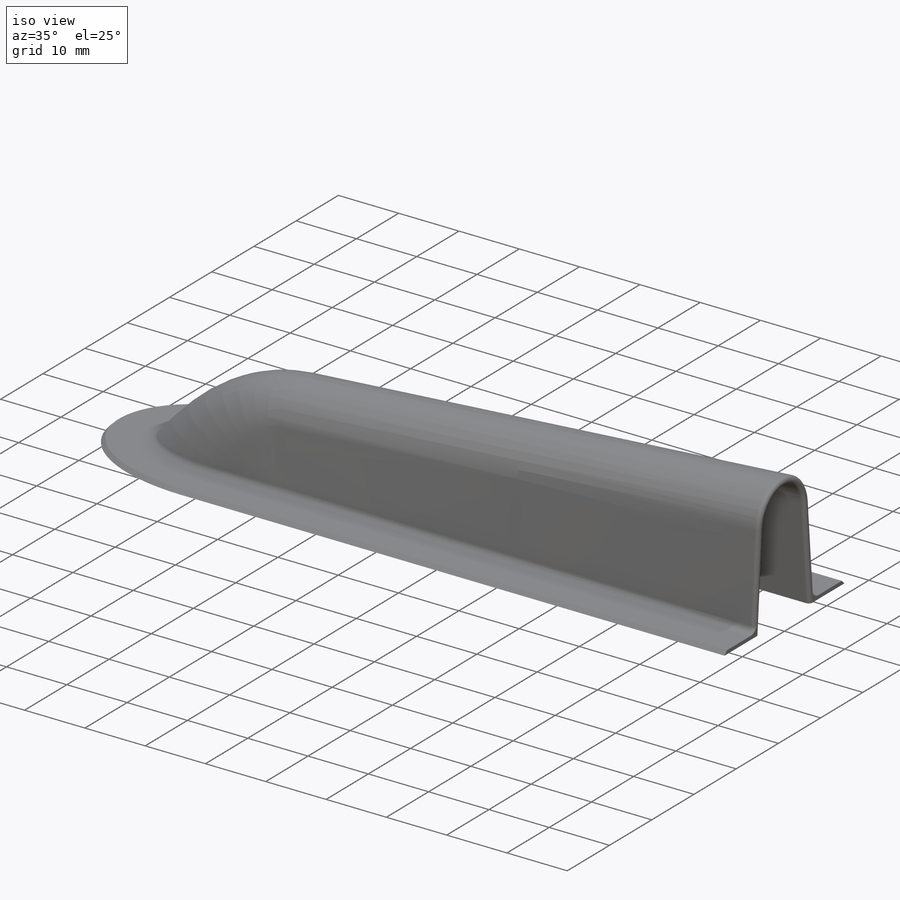
[diagram: iso view]
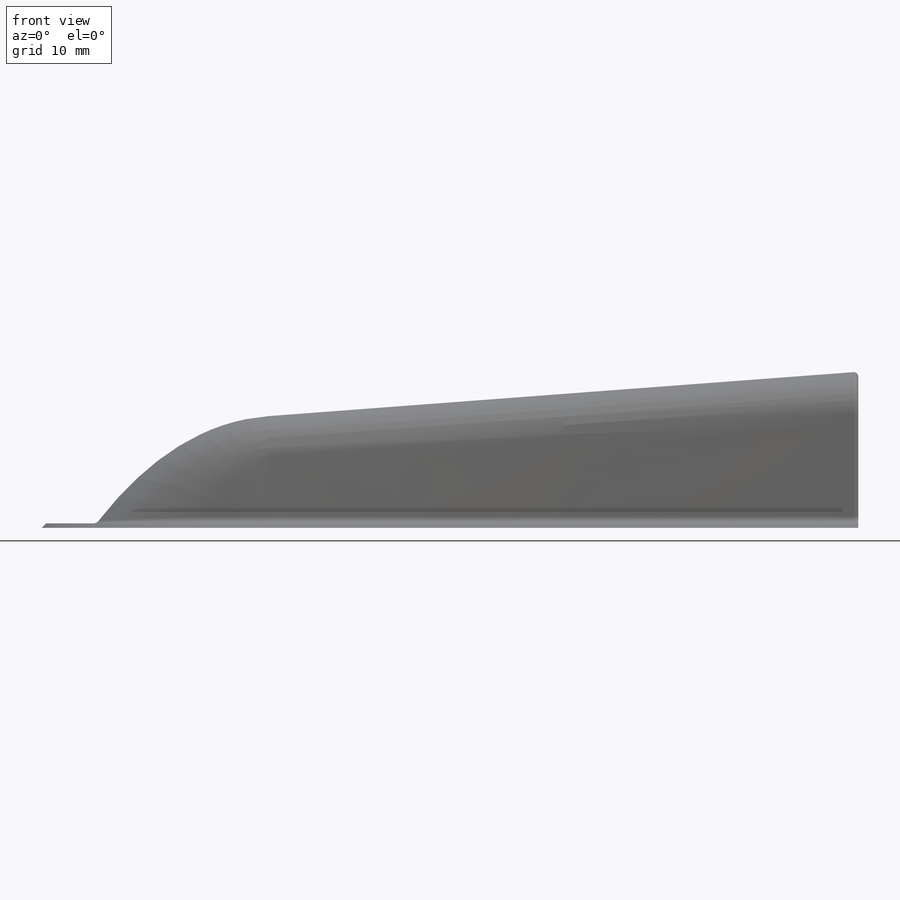
[diagram: front view]
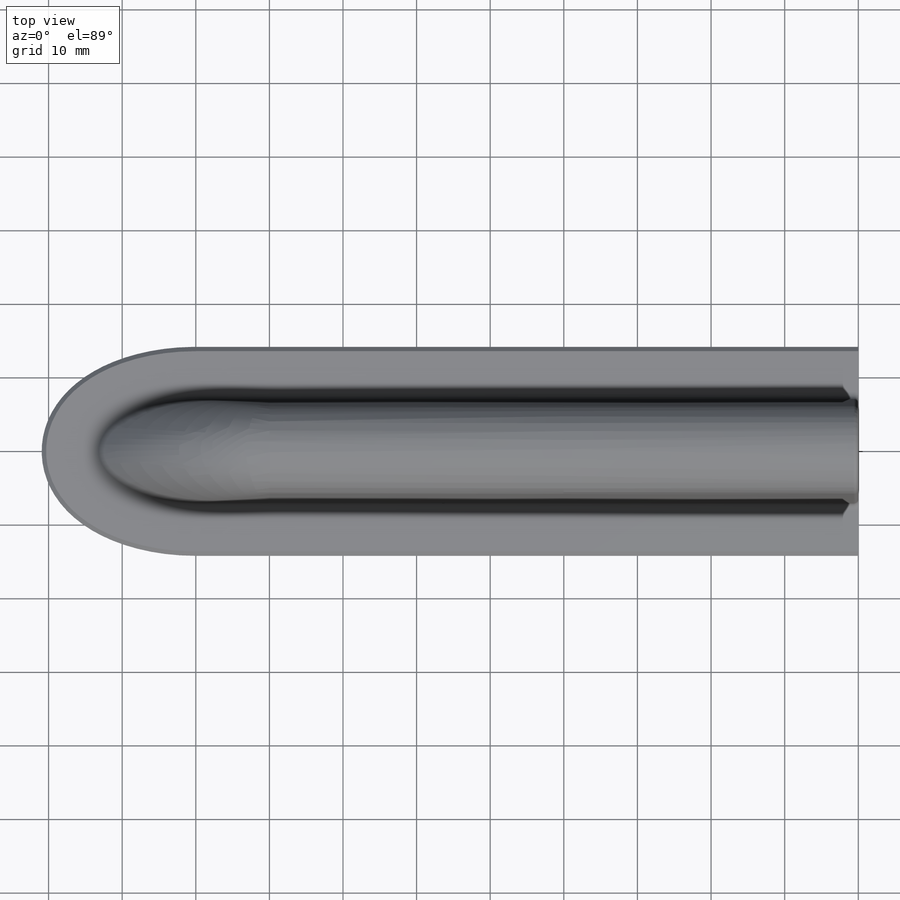
[diagram: top view]
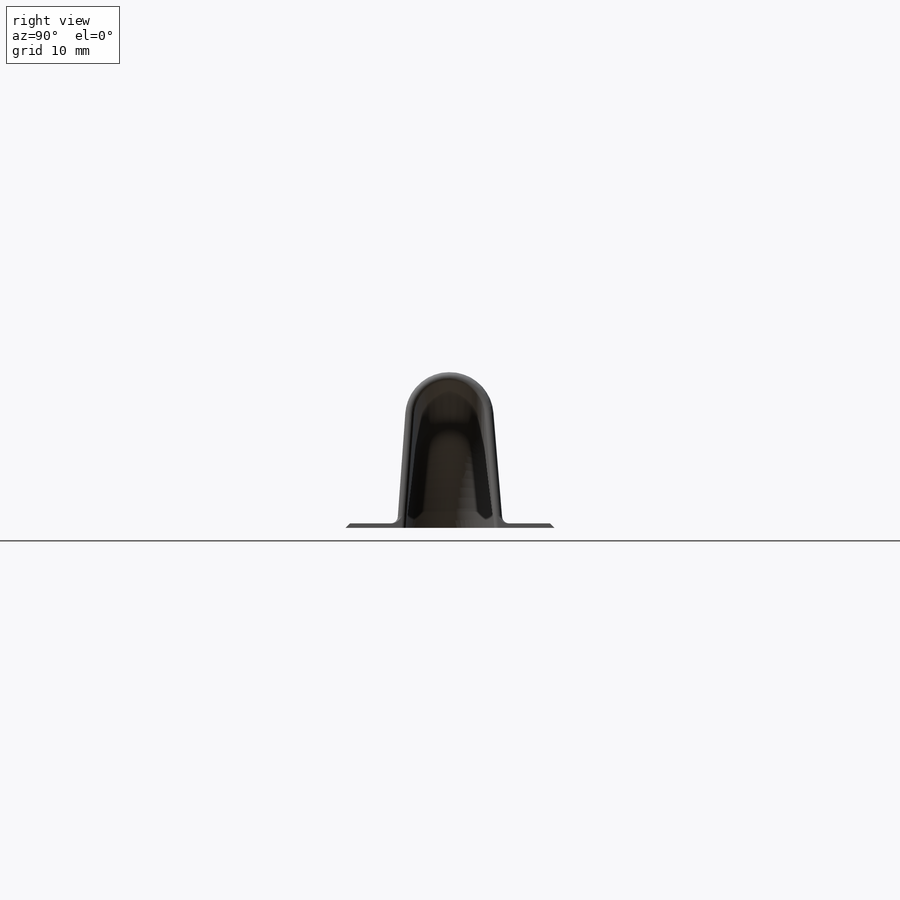
[diagram: right view]
SOLIDWORKS PART (.sldprt)
format: sldprt  version: not decoded by parser v0  size: 465,408 bytes
history: native  units: mm
features: sketch x6, fillet x3, material x1, plane x1, shell x1, extrude x1, chamfer x1 (+12 scaffold rows collapsed)
feature tree (26):
  scaffold x12  (default folders/planes/origin — collapsed)
  material  "Material <not specified>"
  sketch  "Sketch1"  dims[c1.D1=12.4mm c1.D4=6.2mm c2.D1=21.2mm c2.D2=14.4mm c3.D1=6.2mm c3.D3=15.8mm c3.D4=~18.02704mm c4.D3=24.0mm c4.D1=10.0mm c5.D3=22.0mm]
  sketch  "Sketch2"  dims[c1.D1=16.2mm c1.D2=~11.916395mm c1.D3=~5.958198mm c2.D1=8.0mm c2.D2=9.2mm c2.D3=~15.366386mm]
  plane  "Plane1"  Offset=80mm
  sketch  "Sketch3"  dims[D1=21.2mm D2=15.2mm D3=~9.096953mm]
  sketch  "Sketch4"  dims[D1=~67.497694mm]
  sketch  "Sketch2<3>"
  shell  "Shell3"  Thickness=1.2mm
  sketch  "Sketch6"  dims[D3=~8.203215mm D1=7.0mm D2=7.0mm]
  extrude  "Boss-Extrude1"  Depth=0.6mm
  chamfer  "Chamfer1"  Distance=0.6mm Angle=45deg
  fillet  "Fillet4"  Radius=0.6mm
  fillet  "Fillet5"  Radius=0.6mm
  fillet  "Fillet7"  Radius=1mm
decode coverage: 11 of 12 modeling features carry decoded parameters
note: ~ marks probable driven/reference dimensions
note: suppression state not decoded; provenance and decode notes live in map.json
